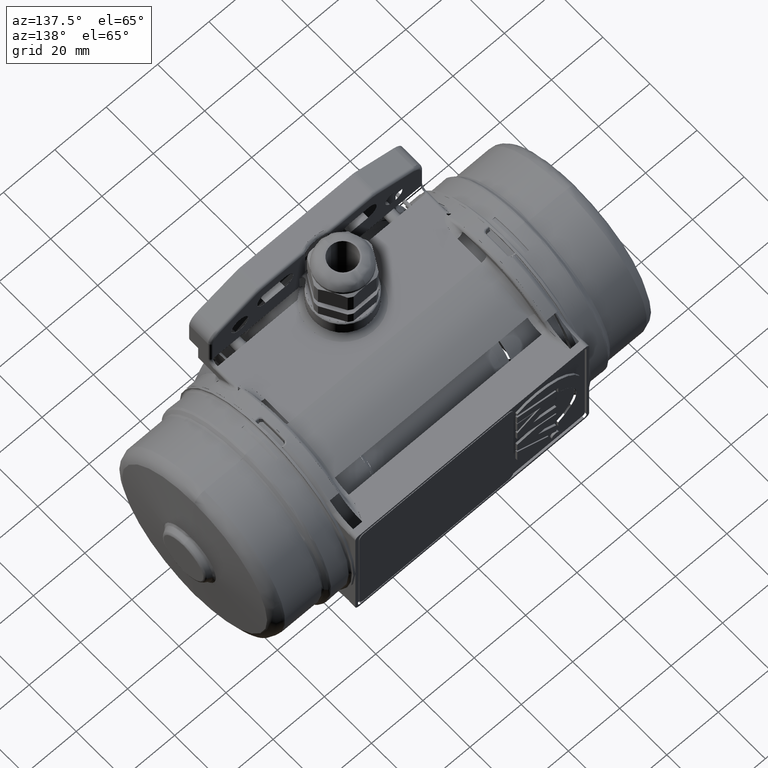
[diagram: clean part render]
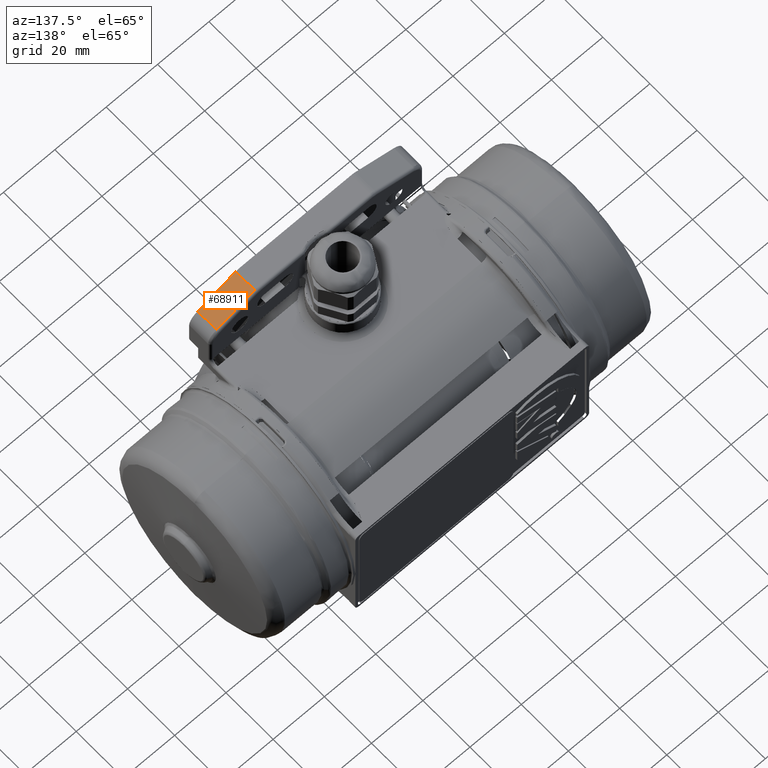
[diagram: same view with one face highlighted and labeled with its STEP entity id]
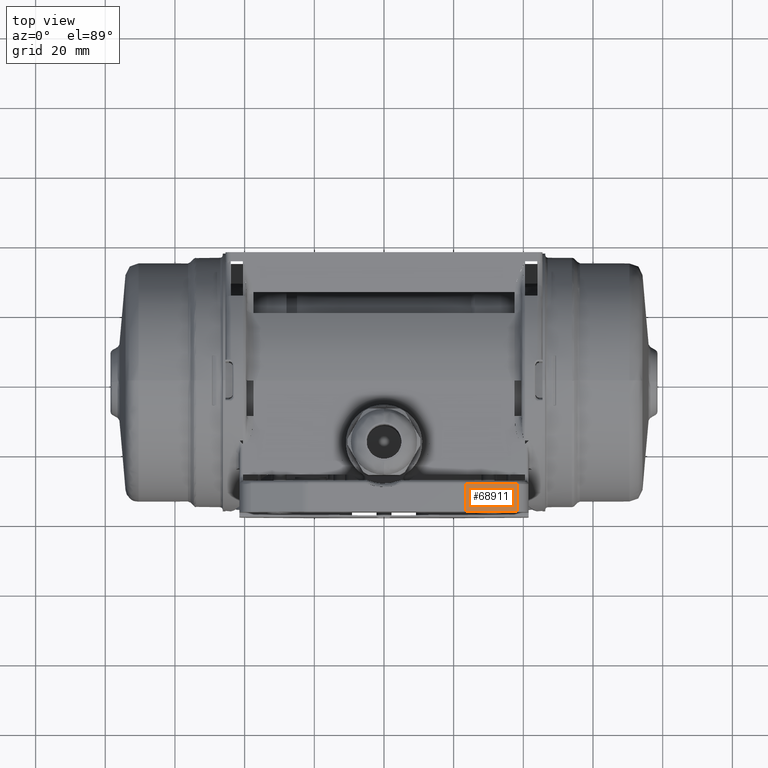
[diagram: same view with one face highlighted and labeled with its STEP entity id]
A machine part, auxiliary view. The second image highlights one B-rep face of the part: STEP entity #68911.
A second angle (top view) of the same face is appended — the face is thin or edge-on in the first view.
In plain terms, the highlighted planar face has unit normal (0.342, 0, 0.9397).
Its self-contained STEP definition (entity closure, byte-faithful):
#3665 = CARTESIAN_POINT ( 'NONE',  ( 23.33345779200000100, -29.66390943500000100, 54.69547027400000200 ) ) ;
#5737 = CARTESIAN_POINT ( 'NONE',  ( 38.21509269599999900, -33.66390943500000100, 49.27899813199999800 ) ) ;
#11680 = LINE ( 'NONE', #5737, #32756 ) ;
#11865 = EDGE_CURVE ( 'NONE', #104663, #67070, #24770, .T. ) ;
#13270 = VERTEX_POINT ( 'NONE', #14781 ) ;
#14239 = VECTOR ( 'NONE', #26488, 1000.000000000000000 ) ;
#14781 = CARTESIAN_POINT ( 'NONE',  ( 38.21509269599999900, -37.66390943500000100, 49.27899813199999800 ) ) ;
#18202 = LINE ( 'NONE', #90644, #37709 ) ;
#21866 = CARTESIAN_POINT ( 'NONE',  ( 23.33345779200000100, -37.66390943500000100, 54.69547027400000200 ) ) ;
#22159 = CARTESIAN_POINT ( 'NONE',  ( 30.77427524400000200, -37.66390943500000100, 51.98723420300000700 ) ) ;
#24141 = ORIENTED_EDGE ( 'NONE', *, *, #42732, .T. ) ;
#24770 = LINE ( 'NONE', #45487, #14239 ) ;
#26488 = DIRECTION ( 'NONE',  ( 0.0000000000000000000, -1.000000000000000000, 0.0000000000000000000 ) ) ;
#31323 = EDGE_CURVE ( 'NONE', #68313, #104663, #18202, .T. ) ;
#32281 = DIRECTION ( 'NONE',  ( 0.9396926207914481100, 0.0000000000000000000, -0.3420201433104485000 ) ) ;
#32756 = VECTOR ( 'NONE', #43764, 1000.000000000000000 ) ;
#33529 = DIRECTION ( 'NONE',  ( -0.9396926207914481100, 0.0000000000000000000, 0.3420201433104485000 ) ) ;
#35975 = LINE ( 'NONE', #22159, #52737 ) ;
#37709 = VECTOR ( 'NONE', #33529, 1000.000000000000100 ) ;
#40111 = DIRECTION ( 'NONE',  ( 0.3420201433104485000, 0.0000000000000000000, 0.9396926207914481100 ) ) ;
#40952 = PLANE ( 'NONE',  #98817 ) ;
#42352 = ORIENTED_EDGE ( 'NONE', *, *, #31323, .T. ) ;
#42732 = EDGE_CURVE ( 'NONE', #67070, #13270, #35975, .T. ) ;
#43764 = DIRECTION ( 'NONE',  ( 0.0000000000000000000, 1.000000000000000000, 0.0000000000000000000 ) ) ;
#45487 = CARTESIAN_POINT ( 'NONE',  ( 23.33345779200000100, -33.66390943500000100, 54.69547027400000200 ) ) ;
#52737 = VECTOR ( 'NONE', #32281, 1000.000000000000100 ) ;
#59623 = ORIENTED_EDGE ( 'NONE', *, *, #122088, .T. ) ;
#64785 = ORIENTED_EDGE ( 'NONE', *, *, #11865, .T. ) ;
#67070 = VERTEX_POINT ( 'NONE', #21866 ) ;
#68313 = VERTEX_POINT ( 'NONE', #107446 ) ;
#68911 = ADVANCED_FACE ( 'NONE', ( #113419 ), #40952, .T. ) ;
#86260 = EDGE_LOOP ( 'NONE', ( #24141, #59623, #42352, #64785 ) ) ;
#89196 = CARTESIAN_POINT ( 'NONE',  ( 23.33345779200000100, -37.66390943500000100, 54.69547027400000200 ) ) ;
#90644 = CARTESIAN_POINT ( 'NONE',  ( 30.77427524400000200, -29.66390943500000100, 51.98723420300000700 ) ) ;
#98817 = AXIS2_PLACEMENT_3D ( 'NONE', #89196, #40111, #109504 ) ;
#104663 = VERTEX_POINT ( 'NONE', #3665 ) ;
#107446 = CARTESIAN_POINT ( 'NONE',  ( 38.21509269599999900, -29.66390943500000100, 49.27899813199999800 ) ) ;
#109504 = DIRECTION ( 'NONE',  ( 0.9396926207914481100, 0.0000000000000000000, -0.3420201433104485000 ) ) ;
#113419 = FACE_OUTER_BOUND ( 'NONE', #86260, .T. ) ;
#122088 = EDGE_CURVE ( 'NONE', #13270, #68313, #11680, .T. ) ;